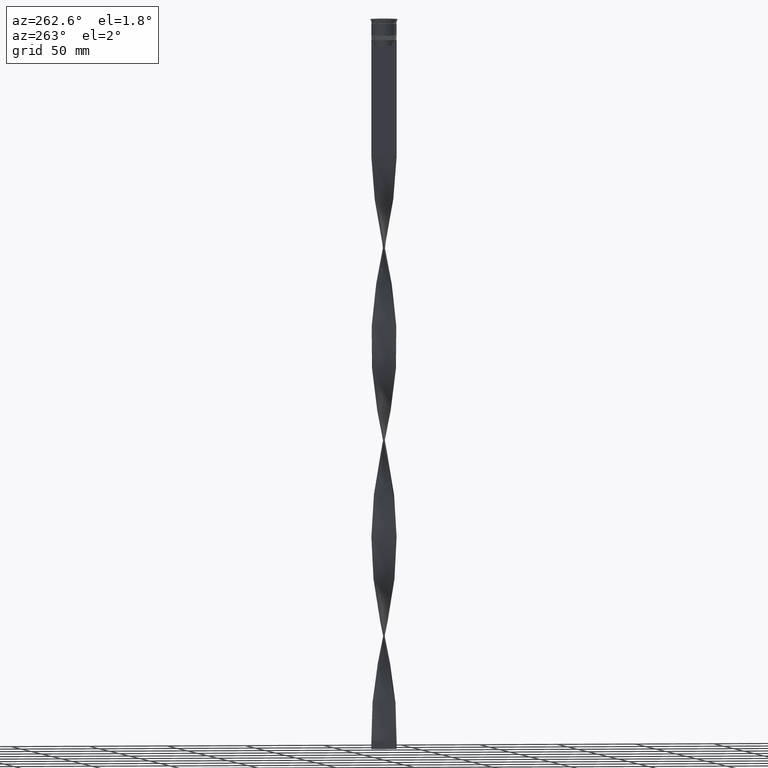
[diagram: clean part render]
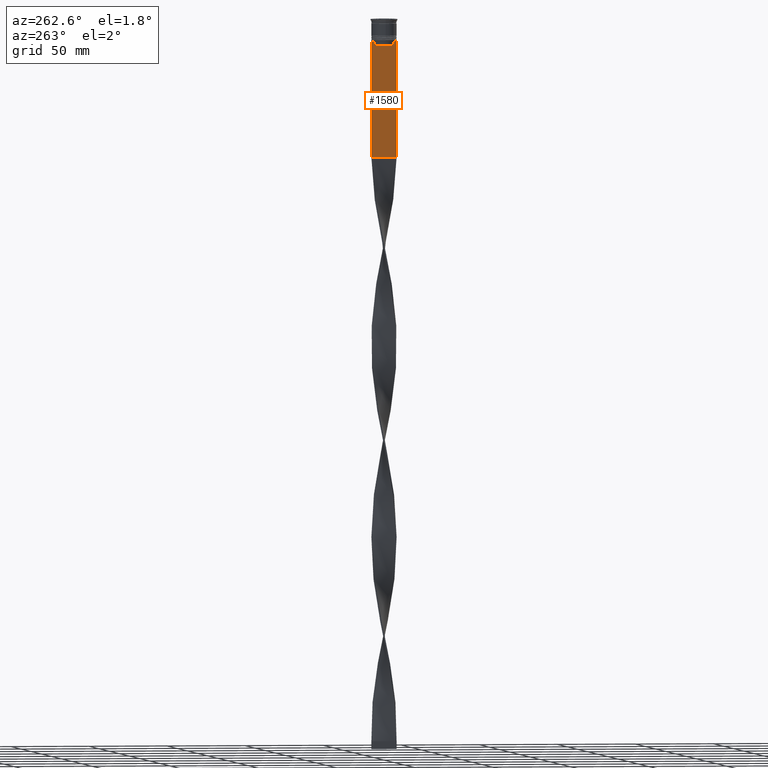
[diagram: same view with one face highlighted and labeled with its STEP entity id]
A machine part, auxiliary view. The second image highlights one B-rep face of the part: STEP entity #1580.
In plain terms, the highlighted planar face has unit normal (-1, 0, 0).
Its self-contained STEP definition (entity closure, byte-faithful):
#100 = DIRECTION ( 'NONE',  ( -1.000000000000000000, 0.000000000000000000, 0.000000000000000000 ) ) ;
#142 = LINE ( 'NONE', #1472, #1695 ) ;
#279 = ORIENTED_EDGE ( 'NONE', *, *, #1379, .F. ) ;
#281 = CARTESIAN_POINT ( 'NONE',  ( -0.4999999999999998890, -8.000000000000003553, -14.00000000000000178 ) ) ;
#429 = CARTESIAN_POINT ( 'NONE',  ( -0.4999999999999998890, -8.000000000000003553, 2.031219541881394530 ) ) ;
#458 = LINE ( 'NONE', #2408, #4285 ) ;
#567 = CARTESIAN_POINT ( 'NONE',  ( -0.4999999999999998890, -6.881860213634098500, -14.00000000000000178 ) ) ;
#581 = DIRECTION ( 'NONE',  ( 0.000000000000000000, -1.000000000000000000, 0.000000000000000000 ) ) ;
#590 = B_SPLINE_CURVE_WITH_KNOTS ( 'NONE', 3,
 ( #1714, #1648, #2684, #2037 ),
 .UNSPECIFIED., .F., .F.,
 ( 4, 4 ),
 ( 0.02996184199614749730, 0.03067452609193703841 ),
 .UNSPECIFIED. ) ;
#650 = LINE ( 'NONE', #3994, #863 ) ;
#714 = CARTESIAN_POINT ( 'NONE',  ( -0.4999999999999998890, -6.380438856379708312, -14.50000000000000000 ) ) ;
#730 = VECTOR ( 'NONE', #2630, 1000.000000000000000 ) ;
#748 = ORIENTED_EDGE ( 'NONE', *, *, #1551, .F. ) ;
#789 = VERTEX_POINT ( 'NONE', #3920 ) ;
#836 = VERTEX_POINT ( 'NONE', #953 ) ;
#863 = VECTOR ( 'NONE', #2924, 1000.000000000000000 ) ;
#953 = CARTESIAN_POINT ( 'NONE',  ( -0.4999999999999998890, 6.380438856379708312, -14.50000000000000000 ) ) ;
#976 = EDGE_CURVE ( 'NONE', #3602, #1992, #142, .T. ) ;
#978 = CARTESIAN_POINT ( 'NONE',  ( -0.4999999999999998890, -7.884161337770806632, -14.00000000000000178 ) ) ;
#1018 = CARTESIAN_POINT ( 'NONE',  ( -0.4999999999999998890, 6.547597841304911626, -14.33335192459222718 ) ) ;
#1061 = ORIENTED_EDGE ( 'NONE', *, *, #2971, .F. ) ;
#1098 = CARTESIAN_POINT ( 'NONE',  ( -0.4999999999999998890, 7.999999999999996447, -88.00000000000000000 ) ) ;
#1103 = LINE ( 'NONE', #2788, #3519 ) ;
#1161 = CARTESIAN_POINT ( 'NONE',  ( -0.4999999999999998890, -8.000000000000003553, -14.00000000000000178 ) ) ;
#1177 = CARTESIAN_POINT ( 'NONE',  ( -0.4999999999999998890, 7.884161337770806632, -14.00000000000000178 ) ) ;
#1198 = CARTESIAN_POINT ( 'NONE',  ( -0.4999999999999998890, -8.000000000000003553, -14.00000000000000178 ) ) ;
#1211 = VECTOR ( 'NONE', #581, 1000.000000000000000 ) ;
#1254 = CARTESIAN_POINT ( 'NONE',  ( -0.4999999999999998890, -8.000000000000003553, -88.00000000000000000 ) ) ;
#1379 = EDGE_CURVE ( 'NONE', #1496, #1476, #3159, .T. ) ;
#1407 = B_SPLINE_CURVE_WITH_KNOTS ( 'NONE', 3,
 ( #3996, #4280, #1018, #3295 ),
 .UNSPECIFIED., .F., .F.,
 ( 4, 4 ),
 ( 0.01172465562756038263, 0.01243276816391822651 ),
 .UNSPECIFIED. ) ;
#1472 = CARTESIAN_POINT ( 'NONE',  ( -0.4999999999999998890, -8.000000000000003553, -88.00000000000000000 ) ) ;
#1476 = VERTEX_POINT ( 'NONE', #4185 ) ;
#1496 = VERTEX_POINT ( 'NONE', #1177 ) ;
#1551 = EDGE_CURVE ( 'NONE', #789, #1959, #1780, .T. ) ;
#1554 = VECTOR ( 'NONE', #2545, 1000.000000000000000 ) ;
#1580 = ADVANCED_FACE ( 'NONE', ( #3427 ), #4047, .T. ) ;
#1620 = VECTOR ( 'NONE', #4015, 1000.000000000000000 ) ;
#1622 = VERTEX_POINT ( 'NONE', #2775 ) ;
#1636 = ORIENTED_EDGE ( 'NONE', *, *, #3568, .F. ) ;
#1648 = CARTESIAN_POINT ( 'NONE',  ( -0.4999999999999998890, -6.547597841511246131, -14.33335192438652328 ) ) ;
#1656 = EDGE_CURVE ( 'NONE', #1959, #1888, #458, .T. ) ;
#1695 = VECTOR ( 'NONE', #4151, 1000.000000000000000 ) ;
#1714 = CARTESIAN_POINT ( 'NONE',  ( -0.4999999999999998890, -6.380438856379708312, -14.50000000000000000 ) ) ;
#1780 = LINE ( 'NONE', #2754, #1894 ) ;
#1804 = ORIENTED_EDGE ( 'NONE', *, *, #3789, .T. ) ;
#1855 = ORIENTED_EDGE ( 'NONE', *, *, #2948, .F. ) ;
#1888 = VERTEX_POINT ( 'NONE', #714 ) ;
#1894 = VECTOR ( 'NONE', #2088, 1000.000000000000000 ) ;
#1917 = EDGE_CURVE ( 'NONE', #1888, #2935, #590, .T. ) ;
#1928 = VERTEX_POINT ( 'NONE', #3039 ) ;
#1959 = VERTEX_POINT ( 'NONE', #2014 ) ;
#1969 = AXIS2_PLACEMENT_3D ( 'NONE', #429, #100, #3084 ) ;
#1992 = VERTEX_POINT ( 'NONE', #1098 ) ;
#2008 = ORIENTED_EDGE ( 'NONE', *, *, #1656, .F. ) ;
#2014 = CARTESIAN_POINT ( 'NONE',  ( -0.4999999999999998890, -6.380438856379708312, -17.00000000000000000 ) ) ;
#2037 = CARTESIAN_POINT ( 'NONE',  ( -0.4999999999999998890, -6.881860213634098500, -14.00000000000000178 ) ) ;
#2088 = DIRECTION ( 'NONE',  ( 0.000000000000000000, -1.000000000000000000, 0.000000000000000000 ) ) ;
#2107 = EDGE_CURVE ( 'NONE', #2935, #3571, #4203, .T. ) ;
#2185 = CARTESIAN_POINT ( 'NONE',  ( -0.4999999999999998890, -8.000000000000003553, -14.00000000000000178 ) ) ;
#2408 = CARTESIAN_POINT ( 'NONE',  ( -0.4999999999999998890, -6.380438856379708312, 0.000000000000000000 ) ) ;
#2545 = DIRECTION ( 'NONE',  ( 0.000000000000000000, -1.000000000000000000, 0.000000000000000000 ) ) ;
#2550 = EDGE_CURVE ( 'NONE', #836, #789, #650, .T. ) ;
#2630 = DIRECTION ( 'NONE',  ( 0.000000000000000000, 0.000000000000000000, -1.000000000000000000 ) ) ;
#2639 = ORIENTED_EDGE ( 'NONE', *, *, #976, .F. ) ;
#2684 = CARTESIAN_POINT ( 'NONE',  ( -0.4999999999999998890, -6.714736947305992132, -14.16668390685738999 ) ) ;
#2754 = CARTESIAN_POINT ( 'NONE',  ( -0.4999999999999998890, 6.399999999999999467, -17.00000000000000000 ) ) ;
#2775 = CARTESIAN_POINT ( 'NONE',  ( -0.4999999999999998890, -8.000000000000003553, -14.00000000000000178 ) ) ;
#2788 = CARTESIAN_POINT ( 'NONE',  ( -0.4999999999999998890, 7.999999999999996447, 2.031219541881394530 ) ) ;
#2892 = CARTESIAN_POINT ( 'NONE',  ( -0.4999999999999998890, -8.000000000000003553, 2.031219541881394530 ) ) ;
#2924 = DIRECTION ( 'NONE',  ( 0.000000000000000000, 0.000000000000000000, -1.000000000000000000 ) ) ;
#2935 = VERTEX_POINT ( 'NONE', #567 ) ;
#2948 = EDGE_CURVE ( 'NONE', #1928, #1496, #3540, .T. ) ;
#2971 = EDGE_CURVE ( 'NONE', #1622, #3602, #4291, .T. ) ;
#3038 = DIRECTION ( 'NONE',  ( 0.000000000000000000, 0.000000000000000000, -1.000000000000000000 ) ) ;
#3039 = CARTESIAN_POINT ( 'NONE',  ( -0.4999999999999998890, 7.999999999999996447, -14.00000000000000178 ) ) ;
#3057 = EDGE_LOOP ( 'NONE', ( #1636, #279, #1855, #1804, #2639, #1061, #4238, #3821, #4230, #2008, #748, #3599 ) ) ;
#3084 = DIRECTION ( 'NONE',  ( 0.000000000000000000, 0.000000000000000000, 1.000000000000000000 ) ) ;
#3159 = LINE ( 'NONE', #1161, #1620 ) ;
#3214 = LINE ( 'NONE', #2185, #1211 ) ;
#3295 = CARTESIAN_POINT ( 'NONE',  ( -0.4999999999999998890, 6.380438856379708312, -14.50000000000000000 ) ) ;
#3397 = EDGE_CURVE ( 'NONE', #3571, #1622, #3214, .T. ) ;
#3427 = FACE_OUTER_BOUND ( 'NONE', #3057, .T. ) ;
#3519 = VECTOR ( 'NONE', #3038, 1000.000000000000000 ) ;
#3540 = LINE ( 'NONE', #281, #4081 ) ;
#3568 = EDGE_CURVE ( 'NONE', #1476, #836, #1407, .T. ) ;
#3571 = VERTEX_POINT ( 'NONE', #978 ) ;
#3599 = ORIENTED_EDGE ( 'NONE', *, *, #2550, .F. ) ;
#3602 = VERTEX_POINT ( 'NONE', #1254 ) ;
#3607 = DIRECTION ( 'NONE',  ( 0.000000000000000000, -1.000000000000000000, 0.000000000000000000 ) ) ;
#3740 = DIRECTION ( 'NONE',  ( -0.000000000000000000, -0.000000000000000000, 1.000000000000000000 ) ) ;
#3789 = EDGE_CURVE ( 'NONE', #1928, #1992, #1103, .T. ) ;
#3821 = ORIENTED_EDGE ( 'NONE', *, *, #2107, .F. ) ;
#3920 = CARTESIAN_POINT ( 'NONE',  ( -0.4999999999999998890, 6.380438856379708312, -17.00000000000000000 ) ) ;
#3994 = CARTESIAN_POINT ( 'NONE',  ( -0.4999999999999998890, 6.380438856379708312, 0.000000000000000000 ) ) ;
#3996 = CARTESIAN_POINT ( 'NONE',  ( -0.4999999999999998890, 6.881860213634098500, -14.00000000000000178 ) ) ;
#4015 = DIRECTION ( 'NONE',  ( 0.000000000000000000, -1.000000000000000000, 0.000000000000000000 ) ) ;
#4047 = PLANE ( 'NONE',  #1969 ) ;
#4081 = VECTOR ( 'NONE', #3607, 1000.000000000000000 ) ;
#4151 = DIRECTION ( 'NONE',  ( 0.000000000000000000, 1.000000000000000000, 0.000000000000000000 ) ) ;
#4185 = CARTESIAN_POINT ( 'NONE',  ( -0.4999999999999998890, 6.881860213634098500, -14.00000000000000178 ) ) ;
#4203 = LINE ( 'NONE', #1198, #1554 ) ;
#4230 = ORIENTED_EDGE ( 'NONE', *, *, #1917, .F. ) ;
#4238 = ORIENTED_EDGE ( 'NONE', *, *, #3397, .F. ) ;
#4280 = CARTESIAN_POINT ( 'NONE',  ( -0.4999999999999998890, 6.714736947114692711, -14.16668390704818847 ) ) ;
#4285 = VECTOR ( 'NONE', #3740, 1000.000000000000000 ) ;
#4291 = LINE ( 'NONE', #2892, #730 ) ;